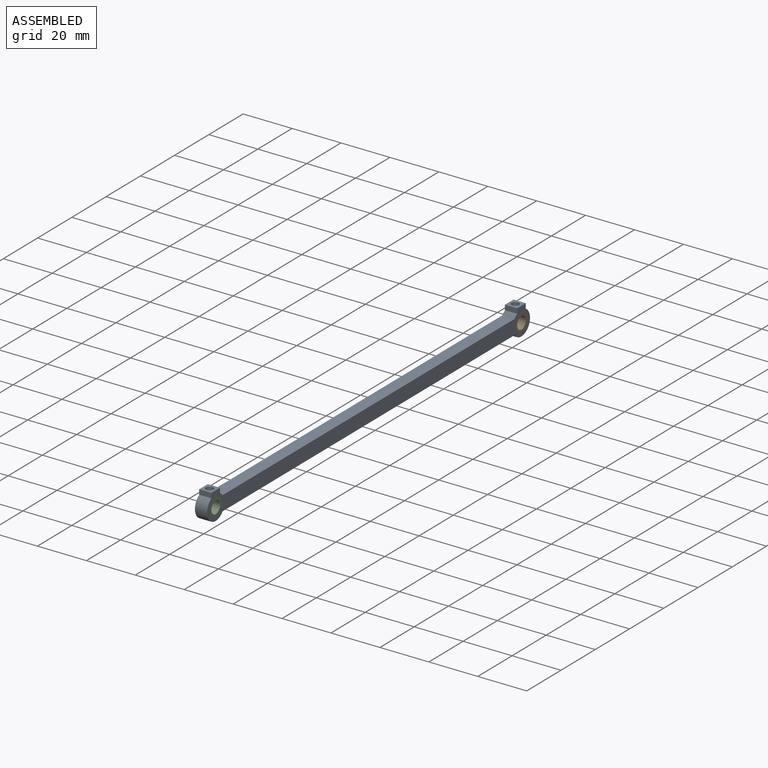
[diagram: assembled view]
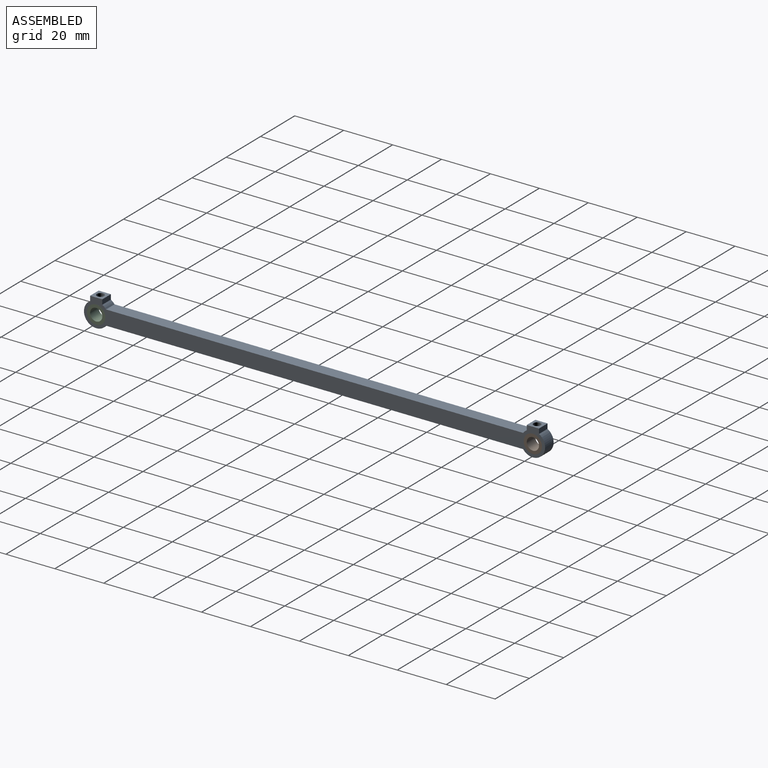
[diagram: assembled view, second angle]
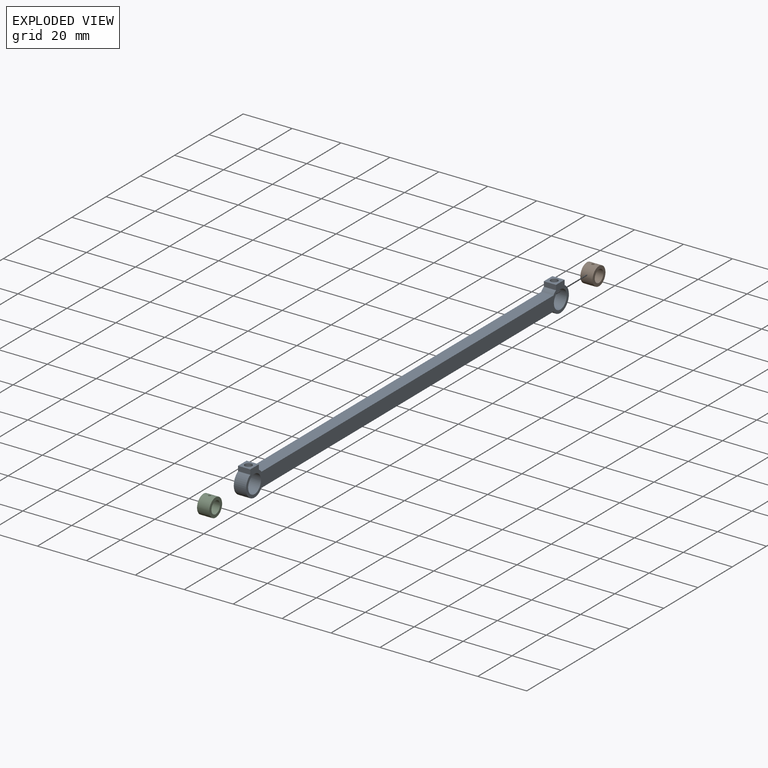
[diagram: exploded view]
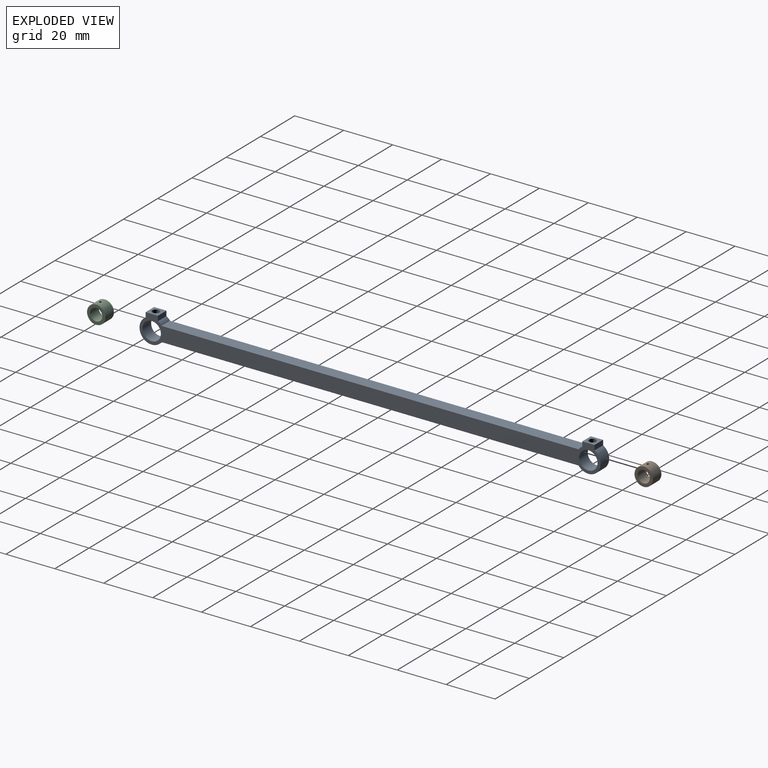
[diagram: exploded view, second angle]
ASSEMBLY  parts=3 mates=2
PART A: 18 faces, bbox 5x188.5x11.3 mm
  f0: plane 5x5mm, normal (0,0,1), area 17.9mm2, adj f1,f12,f14,f15,f17
  f1: plane 5x2mm, normal (0,-1,0), area 10mm2, adj f0,f2,f14,f15
  f2: cylinder r=5mm len=5mm, axis (-1,0,0), area 10.1mm2, adj f1,f3,f14,f15
  f3: plane 170.49x5mm, normal (0,0,1), area 852.4mm2, adj f2,f4,f14,f15
  f4: cylinder r=5mm len=5mm, axis (-1,0,0), area 10.1mm2, adj f3,f5,f14,f15
  f5: plane 5x2mm, normal (0,1,0), area 10mm2, adj f4,f6,f14,f15
  f6: plane 5x5mm, normal (0,0,1), area 17.9mm2, adj f5,f7,f14,f15,f16
  f7: plane 5x2mm, normal (0,-1,0), area 10mm2, adj f6,f8,f14,f15
  f8: cylinder r=5mm len=9.33mm, axis (-1,0,0), area 88.7mm2, adj f7,f9,f14,f15
  f9: plane 170.49x5mm, normal (0,0,-1), area 852.4mm2, adj f8,f10,f14,f15
  f10: cylinder r=5mm len=9.33mm, axis (-1,0,0), area 88.7mm2, adj f9,f12,f14,f15
  f11: cylinder r=3.75mm len=7.5mm, axis (-1,0,0), area 110.6mm2, adj f14,f15,f17
  f12: plane 5x2mm, normal (0,1,0), area 10mm2, adj f0,f10,f14,f15
  f13: cylinder r=3.75mm len=7.5mm, axis (-1,0,0), area 110.6mm2, adj f14,f15,f16
  f14: plane 188.5x11.33mm, normal (1,0,0), area 1096.5mm2, adj f0,f1,f2,f3,f4,f5,f6,f7
  f15: plane 188.5x11.33mm, normal (-1,0,0), area 1096.5mm2, adj f0,f1,f2,f3,f4,f5,f6,f7
  f16: cylinder r=1.5mm len=3mm, axis (0,0,1), area 25.8mm2, adj f6,f13
  f17: cylinder r=1.5mm len=3mm, axis (0,0,1), area 25.8mm2, adj f0,f11
PART B: 5 faces, bbox 5x7.5x7.5 mm
  f0: plane 7.5x7.5mm, normal (1,0,0), area 24.5mm2, adj f1,f2
  f1: cylinder r=3.75mm len=7.5mm, axis (-1,0,0), area 117mm2, adj f0,f3,f4
  f2: cylinder r=2.5mm len=5mm, axis (-1,0,0), area 77.8mm2, adj f0,f3,f4
  f3: plane 7.5x7.5mm, normal (-1,0,0), area 24.5mm2, adj f1,f2
  f4: cylinder r=0.5mm len=1.3mm, axis (0,0,1), area 4mm2, adj f1,f2
PART C: same geometry as B
PLACE A t=(-24.04,-24.77,3.28)mm
PLACE B t=(-24.04,99.57,-4.32)mm
PLACE C t=(-24.04,-78.93,-4.32)mm
MATE fastened C.f1 <-> A.f4  axis (-1,0,0) through (-19.04,-94.43,10.24)mm
MATE fastened B.f1 <-> A.f2  axis (-1,0,0) through (-19.04,84.07,10.24)mm
